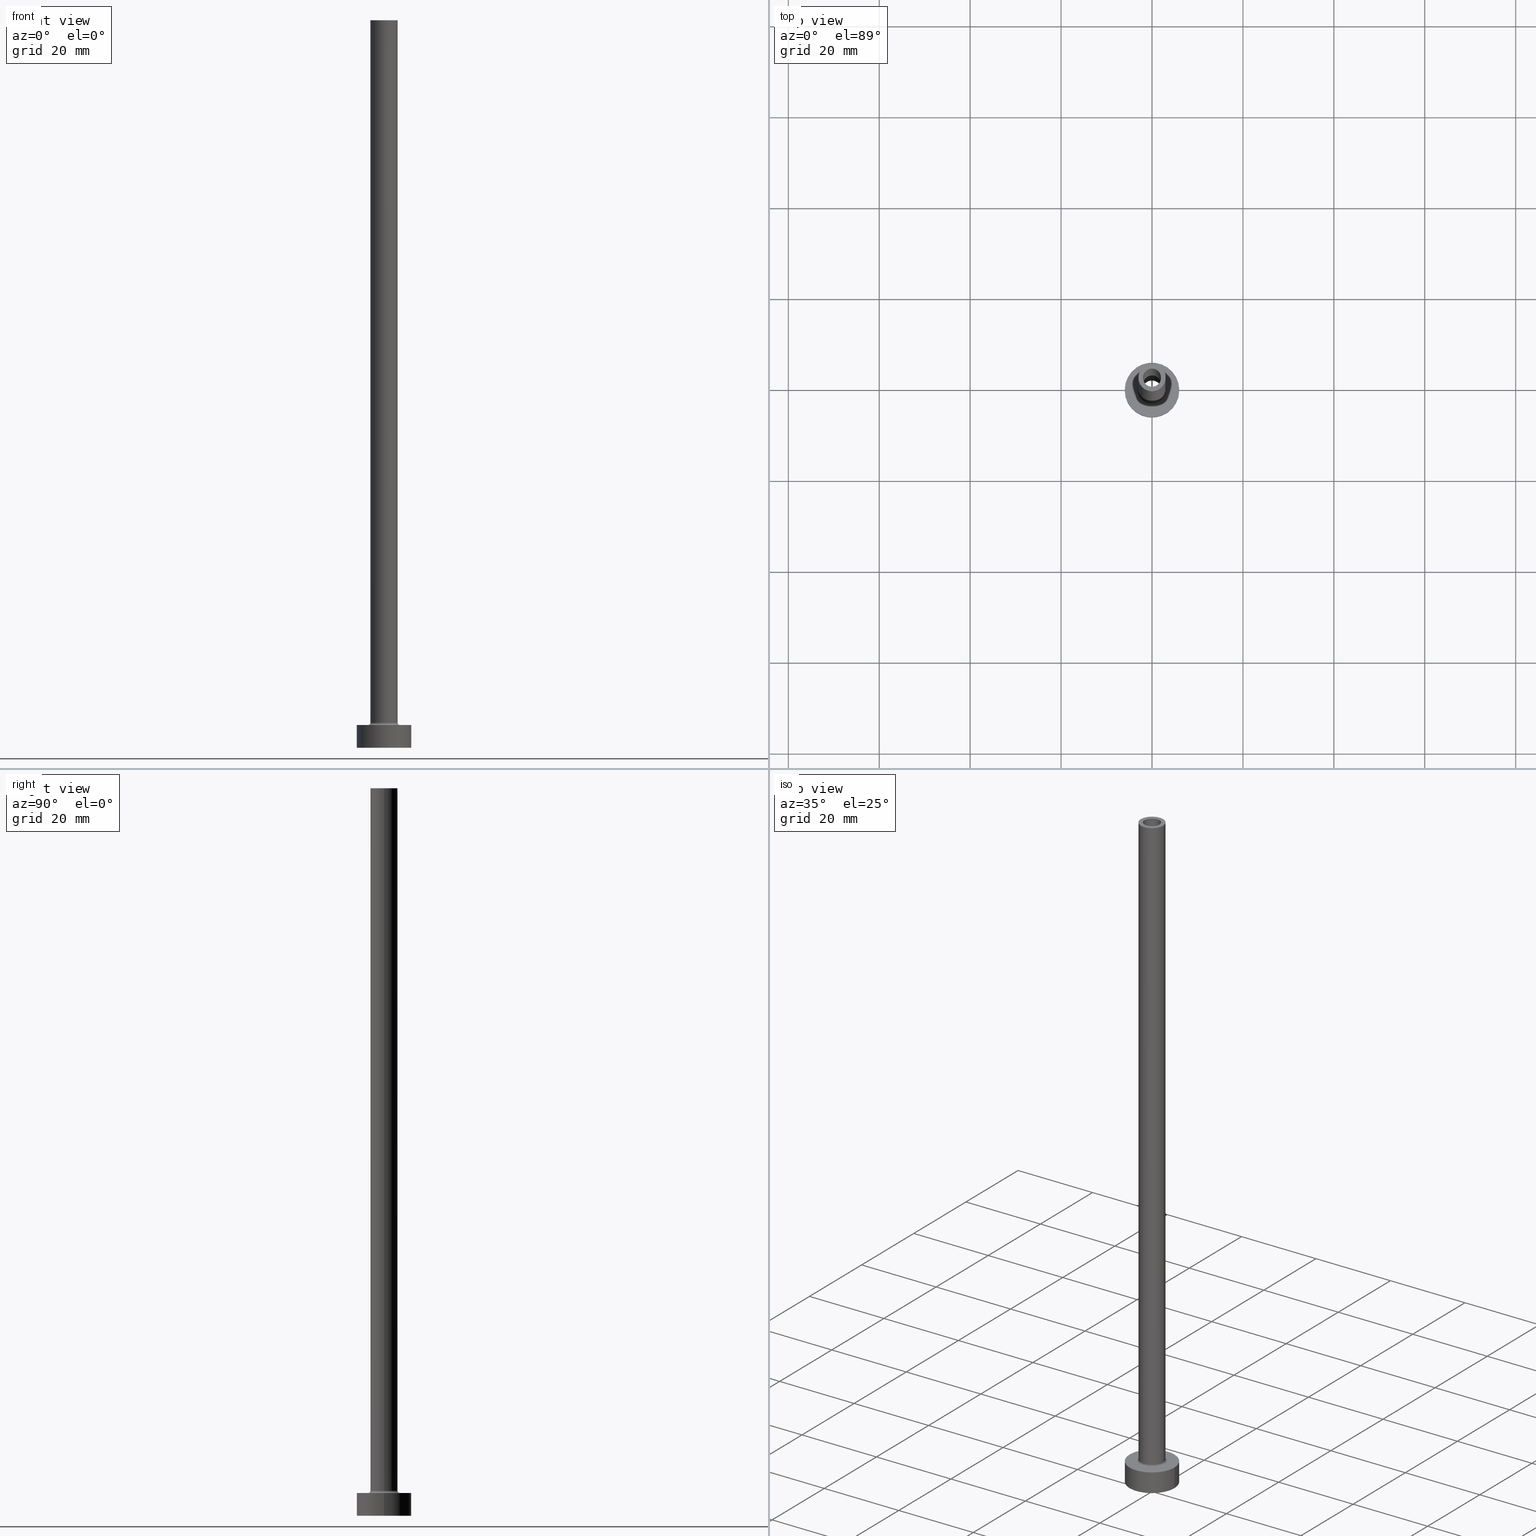
[diagram: canonical four-view strip — front | top / right | iso, engineering-drawing reading convention]
A machine part, canonical four-view strip (front | top / right | iso — engineering-drawing reading convention). The complete STEP part file that produces these views, byte-faithful:
ISO-10303-21;
HEADER;
FILE_DESCRIPTION (( 'STEP AP203' ),
    '1' );
FILE_NAME ('7dac.STEP',
    '2023-02-13T17:46:03',
    ( '' ),
    ( '' ),
    'SwSTEP 2.0',
    'SolidWorks 2019',
    '' );
FILE_SCHEMA (( 'CONFIG_CONTROL_DESIGN' ));
ENDSEC;

DATA;
#1 = DIRECTION ( 'NONE',  ( 0.000000000000000000, 0.000000000000000000, 1.000000000000000000 ) ) ;
#2 = VECTOR ( 'NONE', #407, 1000.000000000000000 ) ;
#3 = DIRECTION ( 'NONE',  ( -1.000000000000000000, 0.000000000000000000, 0.000000000000000000 ) ) ;
#4 = ADVANCED_FACE ( 'NONE', ( #92 ), #336, .F. ) ;
#5 = DIRECTION ( 'NONE',  ( 0.000000000000000000, 0.000000000000000000, -1.000000000000000000 ) ) ;
#6 = DIRECTION ( 'NONE',  ( 0.000000000000000000, 0.000000000000000000, 1.000000000000000000 ) ) ;
#7 = AXIS2_PLACEMENT_3D ( 'NONE', #432, #290, #252 ) ;
#8 = CARTESIAN_POINT ( 'NONE',  ( 0.000000000000000000, 0.000000000000000000, 160.0000000000000000 ) ) ;
#9 = EDGE_CURVE ( 'NONE', #208, #201, #327, .T. ) ;
#10 = APPLICATION_PROTOCOL_DEFINITION ( 'international standard', 'config_control_design', 1994, #184 ) ;
#11 = CARTESIAN_POINT ( 'NONE',  ( -3.000000000000000444, 0.000000000000000000, 160.0000000000000000 ) ) ;
#12 = DATE_AND_TIME ( #267, #288 ) ;
#13 = ADVANCED_FACE ( 'NONE', ( #334, #300 ), #442, .T. ) ;
#14 = CIRCLE ( 'NONE', #7, 3.000000000000000444 ) ;
#15 = DIRECTION ( 'NONE',  ( 0.000000000000000000, 0.000000000000000000, 1.000000000000000000 ) ) ;
#16 = ORIENTED_EDGE ( 'NONE', *, *, #78, .F. ) ;
#17 = ORIENTED_EDGE ( 'NONE', *, *, #31, .T. ) ;
#18 = APPROVAL_DATE_TIME ( #12, #450 ) ;
#19 = ORIENTED_EDGE ( 'NONE', *, *, #43, .T. ) ;
#20 = COORDINATED_UNIVERSAL_TIME_OFFSET ( 1, 0, .AHEAD. ) ;
#21 = ORIENTED_EDGE ( 'NONE', *, *, #239, .F. ) ;
#22 = PERSON_AND_ORGANIZATION ( #157, #350 ) ;
#23 = CIRCLE ( 'NONE', #376, 2.000000000000000000 ) ;
#24 = VERTEX_POINT ( 'NONE', #38 ) ;
#25 = LINE ( 'NONE', #175, #194 ) ;
#26 = VERTEX_POINT ( 'NONE', #253 ) ;
#27 = DIRECTION ( 'NONE',  ( -0.000000000000000000, -0.000000000000000000, -1.000000000000000000 ) ) ;
#28 = VERTEX_POINT ( 'NONE', #311 ) ;
#29 = CARTESIAN_POINT ( 'NONE',  ( 0.000000000000000000, 0.000000000000000000, 160.0000000000000000 ) ) ;
#30 = LINE ( 'NONE', #458, #240 ) ;
#31 = EDGE_CURVE ( 'NONE', #275, #448, #247, .T. ) ;
#32 = ORIENTED_EDGE ( 'NONE', *, *, #183, .T. ) ;
#33 = DIRECTION ( 'NONE',  ( 1.000000000000000000, 0.000000000000000000, 0.000000000000000000 ) ) ;
#34 = AXIS2_PLACEMENT_3D ( 'NONE', #83, #227, #298 ) ;
#35 = DIRECTION ( 'NONE',  ( 1.000000000000000000, 0.000000000000000000, 0.000000000000000000 ) ) ;
#36 = DIRECTION ( 'NONE',  ( 0.000000000000000000, 0.000000000000000000, 1.000000000000000000 ) ) ;
#37 = ORIENTED_EDGE ( 'NONE', *, *, #239, .T. ) ;
#38 = CARTESIAN_POINT ( 'NONE',  ( 2.149999999999999911, 2.632990618166809235E-16, 0.000000000000000000 ) ) ;
#39 = CIRCLE ( 'NONE', #358, 2.149999999999999911 ) ;
#40 = DIRECTION ( 'NONE',  ( 0.000000000000000000, 0.000000000000000000, 1.000000000000000000 ) ) ;
#41 = VERTEX_POINT ( 'NONE', #381 ) ;
#42 = CIRCLE ( 'NONE', #437, 3.000000000000000444 ) ;
#43 = EDGE_CURVE ( 'NONE', #343, #332, #262, .T. ) ;
#44 = CC_DESIGN_APPROVAL ( #254, ( #279 ) ) ;
#45 = APPROVAL_ROLE ( '' ) ;
#46 = DIRECTION ( 'NONE',  ( 1.000000000000000000, 0.000000000000000000, -0.000000000000000000 ) ) ;
#47 = FACE_OUTER_BOUND ( 'NONE', #156, .T. ) ;
#48 = CARTESIAN_POINT ( 'NONE',  ( 0.000000000000000000, 0.000000000000000000, 115.0000000000000000 ) ) ;
#49 = FACE_OUTER_BOUND ( 'NONE', #134, .T. ) ;
#50 = CIRCLE ( 'NONE', #414, 6.000000000000000888 ) ;
#51 = PERSON_AND_ORGANIZATION ( #157, #350 ) ;
#52 = ADVANCED_FACE ( 'NONE', ( #426 ), #421, .F. ) ;
#53 = APPROVAL_STATUS ( 'not_yet_approved' ) ;
#54 = EDGE_LOOP ( 'NONE', ( #315, #223, #274, #172 ) ) ;
#55 = DIRECTION ( 'NONE',  ( 1.000000000000000000, 0.000000000000000000, 0.000000000000000000 ) ) ;
#56 = EDGE_LOOP ( 'NONE', ( #346, #16, #246, #37 ) ) ;
#57 = DATE_TIME_ROLE ( 'creation_date' ) ;
#58 = VERTEX_POINT ( 'NONE', #119 ) ;
#59 = COORDINATED_UNIVERSAL_TIME_OFFSET ( 1, 0, .AHEAD. ) ;
#60 = CIRCLE ( 'NONE', #372, 2.149999999999999911 ) ;
#61 = FACE_OUTER_BOUND ( 'NONE', #306, .T. ) ;
#62 = EDGE_CURVE ( 'NONE', #277, #343, #147, .T. ) ;
#63 = ORIENTED_EDGE ( 'NONE', *, *, #190, .F. ) ;
#64 = AXIS2_PLACEMENT_3D ( 'NONE', #320, #419, #116 ) ;
#65 = CARTESIAN_POINT ( 'NONE',  ( 0.000000000000000000, 0.000000000000000000, 160.0000000000000000 ) ) ;
#66 = AXIS2_PLACEMENT_3D ( 'NONE', #221, #348, #35 ) ;
#67 = ORIENTED_EDGE ( 'NONE', *, *, #132, .F. ) ;
#68 = DIRECTION ( 'NONE',  ( 0.000000000000000000, 0.000000000000000000, 1.000000000000000000 ) ) ;
#69 = EDGE_LOOP ( 'NONE', ( #21, #101, #283, #140 ) ) ;
#70 = CARTESIAN_POINT ( 'NONE',  ( 3.000000000000000444, 3.673940397442060361E-16, 160.0000000000000000 ) ) ;
#71 = EDGE_CURVE ( 'NONE', #24, #58, #39, .T. ) ;
#72 = FACE_OUTER_BOUND ( 'NONE', #349, .T. ) ;
#73 = CARTESIAN_POINT ( 'NONE',  ( 0.000000000000000000, 0.000000000000000000, 0.000000000000000000 ) ) ;
#74 = CARTESIAN_POINT ( 'NONE',  ( 3.000000000000000444, 3.673940397442060361E-16, 160.0000000000000000 ) ) ;
#75 = DIRECTION ( 'NONE',  ( 1.000000000000000000, 0.000000000000000000, 0.000000000000000000 ) ) ;
#76 = DIRECTION ( 'NONE',  ( 1.000000000000000000, 0.000000000000000000, 0.000000000000000000 ) ) ;
#77 = ORIENTED_EDGE ( 'NONE', *, *, #190, .T. ) ;
#78 = EDGE_CURVE ( 'NONE', #26, #277, #79, .T. ) ;
#79 = CIRCLE ( 'NONE', #144, 3.000000000000000444 ) ;
#80 = PERSON_AND_ORGANIZATION ( #157, #350 ) ;
#81 = AXIS2_PLACEMENT_3D ( 'NONE', #155, #109, #179 ) ;
#82 = DIRECTION ( 'NONE',  ( -0.000000000000000000, -0.000000000000000000, -1.000000000000000000 ) ) ;
#83 = CARTESIAN_POINT ( 'NONE',  ( 0.000000000000000000, 0.000000000000000000, 5.000000000000000000 ) ) ;
#84 = CARTESIAN_POINT ( 'NONE',  ( 0.000000000000000000, 0.000000000000000000, 5.000000000000000000 ) ) ;
#85 = CARTESIAN_POINT ( 'NONE',  ( -2.000000000000000000, 0.000000000000000000, 160.0000000000000000 ) ) ;
#86 = AXIS2_PLACEMENT_3D ( 'NONE', #389, #149, #75 ) ;
#87 = CC_DESIGN_APPROVAL ( #450, ( #460 ) ) ;
#88 = APPROVAL_DATE_TIME ( #396, #254 ) ;
#89 = PLANE ( 'NONE',  #189 ) ;
#90 = PERSON_AND_ORGANIZATION_ROLE ( 'creator' ) ;
#91 = VERTEX_POINT ( 'NONE', #111 ) ;
#92 = FACE_OUTER_BOUND ( 'NONE', #167, .T. ) ;
#93 = EDGE_CURVE ( 'NONE', #58, #24, #60, .T. ) ;
#94 = ORIENTED_EDGE ( 'NONE', *, *, #338, .F. ) ;
#95 = VERTEX_POINT ( 'NONE', #316 ) ;
#96 = PRODUCT_DEFINITION_FORMATION_WITH_SPECIFIED_SOURCE ( 'LIBOVOLN�', '', #192, .NOT_KNOWN. ) ;
#97 = DIRECTION ( 'NONE',  ( 0.000000000000000000, 0.000000000000000000, 1.000000000000000000 ) ) ;
#98 = PERSON_AND_ORGANIZATION_ROLE ( 'creator' ) ;
#99 = ADVANCED_FACE ( 'NONE', ( #459 ), #114, .T. ) ;
#100 = LINE ( 'NONE', #11, #341 ) ;
#101 = ORIENTED_EDGE ( 'NONE', *, *, #174, .T. ) ;
#102 = DIRECTION ( 'NONE',  ( 1.000000000000000000, 0.000000000000000000, 0.000000000000000000 ) ) ;
#103 = EDGE_LOOP ( 'NONE', ( #17, #216 ) ) ;
#104 = VECTOR ( 'NONE', #217, 1000.000000000000000 ) ;
#105 = APPLICATION_CONTEXT ( 'configuration controlled 3d designs of mechanical parts and assemblies' ) ;
#106 = CARTESIAN_POINT ( 'NONE',  ( -6.000000000000000888, 0.000000000000000000, 5.000000000000000000 ) ) ;
#107 = AXIS2_PLACEMENT_3D ( 'NONE', #145, #36, #243 ) ;
#108 = ADVANCED_FACE ( 'NONE', ( #264, #130 ), #89, .T. ) ;
#109 = DIRECTION ( 'NONE',  ( 0.000000000000000000, 0.000000000000000000, -1.000000000000000000 ) ) ;
#110 = ORIENTED_EDGE ( 'NONE', *, *, #379, .F. ) ;
#111 = CARTESIAN_POINT ( 'NONE',  ( -6.000000000000000888, 0.000000000000000000, 0.000000000000000000 ) ) ;
#112 = DIRECTION ( 'NONE',  ( 1.224646799147353207E-16, 1.000000000000000000, -0.000000000000000000 ) ) ;
#113 = ORIENTED_EDGE ( 'NONE', *, *, #203, .T. ) ;
#114 = CYLINDRICAL_SURFACE ( 'NONE', #257, 6.000000000000000888 ) ;
#115 = FACE_OUTER_BOUND ( 'NONE', #133, .T. ) ;
#116 = DIRECTION ( 'NONE',  ( 1.000000000000000000, 0.000000000000000000, 0.000000000000000000 ) ) ;
#117 = CIRCLE ( 'NONE', #299, 2.000000000000000000 ) ;
#118 = ADVANCED_FACE ( 'NONE', ( #49 ), #433, .T. ) ;
#119 = CARTESIAN_POINT ( 'NONE',  ( -2.149999999999999911, 0.000000000000000000, 0.000000000000000000 ) ) ;
#120 = DIRECTION ( 'NONE',  ( 0.000000000000000000, 0.000000000000000000, -1.000000000000000000 ) ) ;
#121 = DIRECTION ( 'NONE',  ( 0.000000000000000000, 0.000000000000000000, 1.000000000000000000 ) ) ;
#122 = AXIS2_PLACEMENT_3D ( 'NONE', #394, #82, #225 ) ;
#123 = EDGE_CURVE ( 'NONE', #41, #24, #436, .T. ) ;
#124 = MANIFOLD_SOLID_BREP ( 'Odebrat vysunut�m4', #153 ) ;
#125 = DIRECTION ( 'NONE',  ( 0.000000000000000000, 0.000000000000000000, 1.000000000000000000 ) ) ;
#126 = PRODUCT_DEFINITION_SHAPE ( 'NONE', 'NONE',  #460 ) ;
#127 = CARTESIAN_POINT ( 'NONE',  ( 3.000000000000000444, 3.673940397442060361E-16, 5.500000000000005329 ) ) ;
#128 = COORDINATED_UNIVERSAL_TIME_OFFSET ( 1, 0, .AHEAD. ) ;
#129 = AXIS2_PLACEMENT_3D ( 'NONE', #365, #135, #269 ) ;
#130 = FACE_OUTER_BOUND ( 'NONE', #204, .T. ) ;
#131 = AXIS2_PLACEMENT_3D ( 'NONE', #276, #417, #76 ) ;
#132 = EDGE_CURVE ( 'NONE', #408, #95, #23, .T. ) ;
#133 = EDGE_LOOP ( 'NONE', ( #94, #238 ) ) ;
#134 = EDGE_LOOP ( 'NONE', ( #250, #205, #113, #235 ) ) ;
#135 = DIRECTION ( 'NONE',  ( 0.000000000000000000, 0.000000000000000000, -1.000000000000000000 ) ) ;
#136 = ORIENTED_EDGE ( 'NONE', *, *, #78, .T. ) ;
#137 = EDGE_CURVE ( 'NONE', #448, #271, #234, .T. ) ;
#138 = AXIS2_PLACEMENT_3D ( 'NONE', #241, #422, #237 ) ;
#139 = PERSON_AND_ORGANIZATION_ROLE ( 'classification_officer' ) ;
#140 = ORIENTED_EDGE ( 'NONE', *, *, #260, .F. ) ;
#141 = DESIGN_CONTEXT ( 'detailed design', #105, 'design' ) ;
#142 = ORIENTED_EDGE ( 'NONE', *, *, #203, .F. ) ;
#143 = CYLINDRICAL_SURFACE ( 'NONE', #138, 3.000000000000000444 ) ;
#144 = AXIS2_PLACEMENT_3D ( 'NONE', #29, #152, #177 ) ;
#145 = CARTESIAN_POINT ( 'NONE',  ( 0.000000000000000000, 0.000000000000000000, 0.000000000000000000 ) ) ;
#146 = AXIS2_PLACEMENT_3D ( 'NONE', #193, #325, #3 ) ;
#147 = LINE ( 'NONE', #70, #104 ) ;
#148 = PLANE ( 'NONE',  #359 ) ;
#149 = DIRECTION ( 'NONE',  ( 0.000000000000000000, 0.000000000000000000, 1.000000000000000000 ) ) ;
#150 = CARTESIAN_POINT ( 'NONE',  ( -3.500000000000000444, 4.286263797015737088E-16, 5.500000000000005329 ) ) ;
#151 = ORIENTED_EDGE ( 'NONE', *, *, #244, .F. ) ;
#152 = DIRECTION ( 'NONE',  ( 0.000000000000000000, 0.000000000000000000, 1.000000000000000000 ) ) ;
#153 = CLOSED_SHELL ( 'NONE', ( #220, #4, #52, #295, #99, #118, #13, #310, #344, #108, #196, #393, #326, #159 ) ) ;
#154 = EDGE_CURVE ( 'NONE', #26, #332, #100, .T. ) ;
#155 = CARTESIAN_POINT ( 'NONE',  ( 0.000000000000000000, 0.000000000000000000, 160.0000000000000000 ) ) ;
#156 = EDGE_LOOP ( 'NONE', ( #285, #367, #77, #375 ) ) ;
#157 = PERSON ( 'NEUR�EN�', 'NEUR�EN�', 'NEUR�EN�', ('NEUR�EN�'), ('NEUR�EN�'), ('NEUR�EN�') ) ;
#158 = PERSON_AND_ORGANIZATION_ROLE ( 'design_owner' ) ;
#159 = ADVANCED_FACE ( 'NONE', ( #61 ), #207, .F. ) ;
#160 = CARTESIAN_POINT ( 'NONE',  ( -2.000000000000000000, 0.000000000000000000, 115.0000000000000000 ) ) ;
#161 = DIRECTION ( 'NONE',  ( 0.000000000000000000, 0.000000000000000000, 1.000000000000000000 ) ) ;
#162 = EDGE_CURVE ( 'NONE', #41, #28, #447, .T. ) ;
#163 = DATE_AND_TIME ( #270, #170 ) ;
#164 = DIRECTION ( 'NONE',  ( 1.000000000000000000, 0.000000000000000000, 0.000000000000000000 ) ) ;
#165 = DIRECTION ( 'NONE',  ( -0.000000000000000000, -0.000000000000000000, -1.000000000000000000 ) ) ;
#166 = CC_DESIGN_PERSON_AND_ORGANIZATION_ASSIGNMENT ( #392, #158, ( #192 ) ) ;
#167 = EDGE_LOOP ( 'NONE', ( #32, #211, #374, #63 ) ) ;
#168 = CIRCLE ( 'NONE', #456, 6.000000000000000888 ) ;
#169 = APPROVAL_STATUS ( 'not_yet_approved' ) ;
#170 = LOCAL_TIME ( 18, 46, 3.000000000000000000, #20 ) ;
#171 = DIRECTION ( 'NONE',  ( 1.000000000000000000, 0.000000000000000000, -0.000000000000000000 ) ) ;
#172 = ORIENTED_EDGE ( 'NONE', *, *, #9, .F. ) ;
#173 = DIRECTION ( 'NONE',  ( 1.000000000000000000, 0.000000000000000000, 0.000000000000000000 ) ) ;
#174 = EDGE_CURVE ( 'NONE', #332, #208, #218, .T. ) ;
#175 = CARTESIAN_POINT ( 'NONE',  ( -6.000000000000000888, 0.000000000000000000, 5.000000000000000000 ) ) ;
#176 = ORIENTED_EDGE ( 'NONE', *, *, #9, .T. ) ;
#177 = DIRECTION ( 'NONE',  ( 1.000000000000000000, 0.000000000000000000, 0.000000000000000000 ) ) ;
#178 = AXIS2_PLACEMENT_3D ( 'NONE', #395, #125, #390 ) ;
#179 = DIRECTION ( 'NONE',  ( -1.000000000000000000, 0.000000000000000000, 0.000000000000000000 ) ) ;
#180 = ORIENTED_EDGE ( 'NONE', *, *, #244, .T. ) ;
#181 = DIRECTION ( 'NONE',  ( 0.000000000000000000, 0.000000000000000000, -1.000000000000000000 ) ) ;
#182 = CARTESIAN_POINT ( 'NONE',  ( 0.000000000000000000, 0.000000000000000000, 5.000000000000000000 ) ) ;
#183 = EDGE_CURVE ( 'NONE', #28, #41, #322, .T. ) ;
#184 = APPLICATION_CONTEXT ( 'configuration controlled 3d designs of mechanical parts and assemblies' ) ;
#185 = CARTESIAN_POINT ( 'NONE',  ( 0.000000000000000000, 0.000000000000000000, 0.000000000000000000 ) ) ;
#186 = ORIENTED_EDGE ( 'NONE', *, *, #428, .T. ) ;
#187 = DIRECTION ( 'NONE',  ( 1.000000000000000000, 0.000000000000000000, 0.000000000000000000 ) ) ;
#188 = ORIENTED_EDGE ( 'NONE', *, *, #368, .F. ) ;
#189 = AXIS2_PLACEMENT_3D ( 'NONE', #8, #161, #46 ) ;
#190 = EDGE_CURVE ( 'NONE', #28, #58, #282, .T. ) ;
#191 =( NAMED_UNIT ( * ) PLANE_ANGLE_UNIT ( ) SI_UNIT ( $, .RADIAN. ) );
#192 = PRODUCT ( '7dac', '7dac', '', ( #323 ) ) ;
#193 = CARTESIAN_POINT ( 'NONE',  ( 0.000000000000000000, 0.000000000000000000, 121.0811183182043322 ) ) ;
#194 = VECTOR ( 'NONE', #27, 1000.000000000000000 ) ;
#195 = CYLINDRICAL_SURFACE ( 'NONE', #122, 3.000000000000000444 ) ;
#196 = ADVANCED_FACE ( 'NONE', ( #352 ), #312, .F. ) ;
#197 = DIRECTION ( 'NONE',  ( 0.000000000000000000, 0.000000000000000000, -1.000000000000000000 ) ) ;
#198 = APPROVAL_ROLE ( '' ) ;
#199 = DIRECTION ( 'NONE',  ( -1.000000000000000000, 0.000000000000000000, 0.000000000000000000 ) ) ;
#200 = ORIENTED_EDGE ( 'NONE', *, *, #420, .T. ) ;
#201 = VERTEX_POINT ( 'NONE', #415 ) ;
#202 = VECTOR ( 'NONE', #5, 1000.000000000000000 ) ;
#203 = EDGE_CURVE ( 'NONE', #275, #91, #25, .T. ) ;
#204 = EDGE_LOOP ( 'NONE', ( #136, #242 ) ) ;
#205 = ORIENTED_EDGE ( 'NONE', *, *, #31, .F. ) ;
#206 = DATE_AND_TIME ( #371, #386 ) ;
#207 = CYLINDRICAL_SURFACE ( 'NONE', #265, 2.000000000000000000 ) ;
#208 = VERTEX_POINT ( 'NONE', #212 ) ;
#209 = CIRCLE ( 'NONE', #178, 2.000000000000000000 ) ;
#210 = DIRECTION ( 'NONE',  ( 0.000000000000000000, 0.000000000000000000, 1.000000000000000000 ) ) ;
#211 = ORIENTED_EDGE ( 'NONE', *, *, #123, .T. ) ;
#212 = CARTESIAN_POINT ( 'NONE',  ( -3.500000000000000444, 4.286263797015737088E-16, 5.000000000000002665 ) ) ;
#213 = EDGE_LOOP ( 'NONE', ( #418, #176 ) ) ;
#214 = CARTESIAN_POINT ( 'NONE',  ( 0.000000000000000000, 0.000000000000000000, 0.000000000000000000 ) ) ;
#215 = DIRECTION ( 'NONE',  ( -1.000000000000000000, 1.224646799147354440E-16, 0.000000000000000000 ) ) ;
#216 = ORIENTED_EDGE ( 'NONE', *, *, #441, .T. ) ;
#217 = DIRECTION ( 'NONE',  ( -0.000000000000000000, -0.000000000000000000, -1.000000000000000000 ) ) ;
#218 = CIRCLE ( 'NONE', #385, 0.4999999999999995559 ) ;
#219 = FACE_OUTER_BOUND ( 'NONE', #303, .T. ) ;
#220 = ADVANCED_FACE ( 'NONE', ( #411 ), #284, .F. ) ;
#221 = CARTESIAN_POINT ( 'NONE',  ( 0.000000000000000000, 0.000000000000000000, 5.500000000000005329 ) ) ;
#222 = CARTESIAN_POINT ( 'NONE',  ( 0.000000000000000000, 0.000000000000000000, 0.000000000000000000 ) ) ;
#223 = ORIENTED_EDGE ( 'NONE', *, *, #43, .F. ) ;
#224 = PRODUCT_RELATED_PRODUCT_CATEGORY ( 'detail', '', ( #192 ) ) ;
#225 = DIRECTION ( 'NONE',  ( -1.000000000000000000, 0.000000000000000000, 0.000000000000000000 ) ) ;
#226 = DIRECTION ( 'NONE',  ( -1.000000000000000000, 0.000000000000000000, 0.000000000000000000 ) ) ;
#227 = DIRECTION ( 'NONE',  ( -0.000000000000000000, -0.000000000000000000, -1.000000000000000000 ) ) ;
#228 = SHAPE_DEFINITION_REPRESENTATION ( #126, #309 ) ;
#229 = DATE_AND_TIME ( #406, #377 ) ;
#230 = CARTESIAN_POINT ( 'NONE',  ( 0.000000000000000000, 0.000000000000000000, 5.000000000000000000 ) ) ;
#231 = EDGE_CURVE ( 'NONE', #201, #208, #397, .T. ) ;
#232 = PERSON_AND_ORGANIZATION ( #157, #350 ) ;
#233 = ORIENTED_EDGE ( 'NONE', *, *, #71, .F. ) ;
#234 = LINE ( 'NONE', #445, #2 ) ;
#235 = ORIENTED_EDGE ( 'NONE', *, *, #338, .T. ) ;
#236 = COORDINATED_UNIVERSAL_TIME_OFFSET ( 1, 0, .AHEAD. ) ;
#237 = DIRECTION ( 'NONE',  ( -1.000000000000000000, 0.000000000000000000, 0.000000000000000000 ) ) ;
#238 = ORIENTED_EDGE ( 'NONE', *, *, #428, .F. ) ;
#239 = EDGE_CURVE ( 'NONE', #332, #343, #42, .T. ) ;
#240 = VECTOR ( 'NONE', #181, 1000.000000000000000 ) ;
#241 = CARTESIAN_POINT ( 'NONE',  ( 0.000000000000000000, 0.000000000000000000, 160.0000000000000000 ) ) ;
#242 = ORIENTED_EDGE ( 'NONE', *, *, #379, .T. ) ;
#243 = DIRECTION ( 'NONE',  ( 1.000000000000000000, 0.000000000000000000, -0.000000000000000000 ) ) ;
#244 = EDGE_CURVE ( 'NONE', #340, #95, #30, .T. ) ;
#245 = DIRECTION ( 'NONE',  ( -0.000000000000000000, -0.000000000000000000, -1.000000000000000000 ) ) ;
#246 = ORIENTED_EDGE ( 'NONE', *, *, #154, .T. ) ;
#247 = CIRCLE ( 'NONE', #382, 6.000000000000000888 ) ;
#248 = CIRCLE ( 'NONE', #278, 0.5000000000000004441 ) ;
#249 = DIRECTION ( 'NONE',  ( 0.000000000000000000, 0.000000000000000000, 1.000000000000000000 ) ) ;
#250 = ORIENTED_EDGE ( 'NONE', *, *, #137, .F. ) ;
#251 = DIRECTION ( 'NONE',  ( 0.000000000000000000, 0.000000000000000000, 1.000000000000000000 ) ) ;
#252 = DIRECTION ( 'NONE',  ( 1.000000000000000000, 0.000000000000000000, 0.000000000000000000 ) ) ;
#253 = CARTESIAN_POINT ( 'NONE',  ( -3.000000000000000444, 0.000000000000000000, 160.0000000000000000 ) ) ;
#254 = APPROVAL ( #169, 'NEUR�EN�' ) ;
#255 =( LENGTH_UNIT ( ) NAMED_UNIT ( * ) SI_UNIT ( .MILLI., .METRE. ) );
#256 = CIRCLE ( 'NONE', #430, 6.000000000000000888 ) ;
#257 = AXIS2_PLACEMENT_3D ( 'NONE', #182, #318, #226 ) ;
#258 = APPROVAL_PERSON_ORGANIZATION ( #22, #254, #435 ) ;
#259 = CARTESIAN_POINT ( 'NONE',  ( 6.000000000000000888, 7.347880794884120722E-16, 5.000000000000000000 ) ) ;
#260 = EDGE_CURVE ( 'NONE', #343, #201, #248, .T. ) ;
#261 = CARTESIAN_POINT ( 'NONE',  ( 0.000000000000000000, 0.000000000000000000, 160.0000000000000000 ) ) ;
#262 = CIRCLE ( 'NONE', #64, 3.000000000000000444 ) ;
#263 = CALENDAR_DATE ( 2023, 13, 2 ) ;
#264 = FACE_BOUND ( 'NONE', #268, .T. ) ;
#265 = AXIS2_PLACEMENT_3D ( 'NONE', #449, #197, #199 ) ;
#266 = CC_DESIGN_SECURITY_CLASSIFICATION ( #279, ( #96 ) ) ;
#267 = CALENDAR_DATE ( 2023, 13, 2 ) ;
#268 = EDGE_LOOP ( 'NONE', ( #423, #188 ) ) ;
#269 = DIRECTION ( 'NONE',  ( -1.000000000000000000, 0.000000000000000000, 0.000000000000000000 ) ) ;
#270 = CALENDAR_DATE ( 2023, 13, 2 ) ;
#271 = VERTEX_POINT ( 'NONE', #289 ) ;
#272 =( GEOMETRIC_REPRESENTATION_CONTEXT ( 3 ) GLOBAL_UNCERTAINTY_ASSIGNED_CONTEXT ( ( #409 ) ) GLOBAL_UNIT_ASSIGNED_CONTEXT ( ( #255, #191, #328 ) ) REPRESENTATION_CONTEXT ( 'NONE', 'WORKASPACE' ) );
#273 = COORDINATED_UNIVERSAL_TIME_OFFSET ( 1, 0, .AHEAD. ) ;
#274 = ORIENTED_EDGE ( 'NONE', *, *, #260, .T. ) ;
#275 = VERTEX_POINT ( 'NONE', #106 ) ;
#276 = CARTESIAN_POINT ( 'NONE',  ( 0.000000000000000000, 0.000000000000000000, 115.0000000000000000 ) ) ;
#277 = VERTEX_POINT ( 'NONE', #74 ) ;
#278 = AXIS2_PLACEMENT_3D ( 'NONE', #378, #317, #461 ) ;
#279 = SECURITY_CLASSIFICATION ( '', '', #302 ) ;
#280 = DIRECTION ( 'NONE',  ( 1.000000000000000000, 0.000000000000000000, 0.000000000000000000 ) ) ;
#281 = ORIENTED_EDGE ( 'NONE', *, *, #321, .T. ) ;
#282 = LINE ( 'NONE', #425, #457 ) ;
#283 = ORIENTED_EDGE ( 'NONE', *, *, #231, .F. ) ;
#284 = CYLINDRICAL_SURFACE ( 'NONE', #81, 2.000000000000000000 ) ;
#285 = ORIENTED_EDGE ( 'NONE', *, *, #123, .F. ) ;
#286 = DIRECTION ( 'NONE',  ( -0.000000000000000000, -0.000000000000000000, -1.000000000000000000 ) ) ;
#287 = AXIS2_PLACEMENT_3D ( 'NONE', #230, #165, #55 ) ;
#288 = LOCAL_TIME ( 18, 46, 3.000000000000000000, #273 ) ;
#289 = CARTESIAN_POINT ( 'NONE',  ( 6.000000000000000888, 7.347880794884120722E-16, 0.000000000000000000 ) ) ;
#290 = DIRECTION ( 'NONE',  ( 0.000000000000000000, 0.000000000000000000, 1.000000000000000000 ) ) ;
#291 = CC_DESIGN_PERSON_AND_ORGANIZATION_ASSIGNMENT ( #403, #401, ( #96 ) ) ;
#292 = DIRECTION ( 'NONE',  ( 0.000000000000000000, 0.000000000000000000, 1.000000000000000000 ) ) ;
#293 = CARTESIAN_POINT ( 'NONE',  ( -2.000000000000000000, 0.000000000000000000, 160.0000000000000000 ) ) ;
#294 = APPROVAL_PERSON_ORGANIZATION ( #51, #434, #198 ) ;
#295 = ADVANCED_FACE ( 'NONE', ( #219 ), #143, .T. ) ;
#296 = FACE_OUTER_BOUND ( 'NONE', #56, .T. ) ;
#297 = DIRECTION ( 'NONE',  ( 1.000000000000000000, 0.000000000000000000, 0.000000000000000000 ) ) ;
#298 = DIRECTION ( 'NONE',  ( -1.000000000000000000, 0.000000000000000000, 0.000000000000000000 ) ) ;
#299 = AXIS2_PLACEMENT_3D ( 'NONE', #65, #210, #280 ) ;
#300 = FACE_OUTER_BOUND ( 'NONE', #103, .T. ) ;
#301 = ORIENTED_EDGE ( 'NONE', *, *, #420, .F. ) ;
#302 = SECURITY_CLASSIFICATION_LEVEL ( 'unclassified' ) ;
#303 = EDGE_LOOP ( 'NONE', ( #110, #369, #19, #357 ) ) ;
#304 = CIRCLE ( 'NONE', #363, 2.000000000000000000 ) ;
#305 = CC_DESIGN_DATE_AND_TIME_ASSIGNMENT ( #229, #57, ( #460 ) ) ;
#306 = EDGE_LOOP ( 'NONE', ( #151, #370, #200, #384 ) ) ;
#307 = DIRECTION ( 'NONE',  ( 1.000000000000000000, 0.000000000000000000, 0.000000000000000000 ) ) ;
#308 = DIRECTION ( 'NONE',  ( 1.000000000000000000, 0.000000000000000000, -0.000000000000000000 ) ) ;
#309 = ADVANCED_BREP_SHAPE_REPRESENTATION ( '7dac', ( #124, #404 ), #272 ) ;
#310 = ADVANCED_FACE ( 'NONE', ( #345, #115 ), #454, .F. ) ;
#311 = CARTESIAN_POINT ( 'NONE',  ( -2.149999999999999911, 0.000000000000000000, 115.0000000000000000 ) ) ;
#312 = TOROIDAL_SURFACE ( 'NONE', #66, 3.500000000000000444, 0.5000000000000000000 ) ;
#313 = LOCAL_TIME ( 18, 46, 3.000000000000000000, #128 ) ;
#314 = CARTESIAN_POINT ( 'NONE',  ( 0.000000000000000000, 0.000000000000000000, 5.500000000000005329 ) ) ;
#315 = ORIENTED_EDGE ( 'NONE', *, *, #174, .F. ) ;
#316 = CARTESIAN_POINT ( 'NONE',  ( 2.000000000000000000, 2.449293598294705921E-16, 115.0000000000000000 ) ) ;
#317 = DIRECTION ( 'NONE',  ( 0.000000000000000000, -1.000000000000000000, 0.000000000000000000 ) ) ;
#318 = DIRECTION ( 'NONE',  ( -0.000000000000000000, -0.000000000000000000, -1.000000000000000000 ) ) ;
#319 = CARTESIAN_POINT ( 'NONE',  ( 0.000000000000000000, 0.000000000000000000, 115.0000000000000000 ) ) ;
#320 = CARTESIAN_POINT ( 'NONE',  ( 0.000000000000000000, 0.000000000000000000, 5.500000000000005329 ) ) ;
#321 = EDGE_CURVE ( 'NONE', #405, #340, #117, .T. ) ;
#322 = CIRCLE ( 'NONE', #131, 2.149999999999999911 ) ;
#323 = MECHANICAL_CONTEXT ( 'NONE', #184, 'mechanical' ) ;
#324 = CARTESIAN_POINT ( 'NONE',  ( 2.149999999999999911, 2.632990618166809235E-16, 121.0811183182043322 ) ) ;
#325 = DIRECTION ( 'NONE',  ( 0.000000000000000000, 0.000000000000000000, -1.000000000000000000 ) ) ;
#326 = ADVANCED_FACE ( 'NONE', ( #380, #72 ), #148, .F. ) ;
#327 = CIRCLE ( 'NONE', #287, 3.500000000000000444 ) ;
#328 =( NAMED_UNIT ( * ) SI_UNIT ( $, .STERADIAN. ) SOLID_ANGLE_UNIT ( ) );
#329 = AXIS2_PLACEMENT_3D ( 'NONE', #331, #15, #164 ) ;
#330 = CC_DESIGN_DATE_AND_TIME_ASSIGNMENT ( #206, #339, ( #279 ) ) ;
#331 = CARTESIAN_POINT ( 'NONE',  ( 0.000000000000000000, 0.000000000000000000, 115.0000000000000000 ) ) ;
#332 = VERTEX_POINT ( 'NONE', #387 ) ;
#333 = VECTOR ( 'NONE', #120, 1000.000000000000000 ) ;
#334 = FACE_BOUND ( 'NONE', #213, .T. ) ;
#335 = EDGE_LOOP ( 'NONE', ( #400, #452 ) ) ;
#336 = CYLINDRICAL_SURFACE ( 'NONE', #129, 2.149999999999999911 ) ;
#337 = EDGE_LOOP ( 'NONE', ( #354, #233 ) ) ;
#338 = EDGE_CURVE ( 'NONE', #91, #271, #50, .T. ) ;
#339 = DATE_TIME_ROLE ( 'classification_date' ) ;
#340 = VERTEX_POINT ( 'NONE', #451 ) ;
#341 = VECTOR ( 'NONE', #440, 1000.000000000000000 ) ;
#342 = DIRECTION ( 'NONE',  ( 0.000000000000000000, 0.000000000000000000, -1.000000000000000000 ) ) ;
#343 = VERTEX_POINT ( 'NONE', #127 ) ;
#344 = ADVANCED_FACE ( 'NONE', ( #296 ), #195, .T. ) ;
#345 = FACE_BOUND ( 'NONE', #337, .T. ) ;
#346 = ORIENTED_EDGE ( 'NONE', *, *, #62, .F. ) ;
#347 = DIRECTION ( 'NONE',  ( 1.000000000000000000, 0.000000000000000000, 0.000000000000000000 ) ) ;
#348 = DIRECTION ( 'NONE',  ( 0.000000000000000000, 0.000000000000000000, 1.000000000000000000 ) ) ;
#349 = EDGE_LOOP ( 'NONE', ( #412, #438 ) ) ;
#350 = ORGANIZATION ( 'NEUR�EN�', 'NEUR�EN�', '' ) ;
#351 = CC_DESIGN_APPROVAL ( #434, ( #96 ) ) ;
#352 = FACE_OUTER_BOUND ( 'NONE', #54, .T. ) ;
#353 = CARTESIAN_POINT ( 'NONE',  ( 0.000000000000000000, 0.000000000000000000, 5.000000000000000000 ) ) ;
#354 = ORIENTED_EDGE ( 'NONE', *, *, #93, .F. ) ;
#355 = CC_DESIGN_PERSON_AND_ORGANIZATION_ASSIGNMENT ( #232, #98, ( #96 ) ) ;
#356 = CARTESIAN_POINT ( 'NONE',  ( 0.000000000000000000, 0.000000000000000000, 0.000000000000000000 ) ) ;
#357 = ORIENTED_EDGE ( 'NONE', *, *, #154, .F. ) ;
#358 = AXIS2_PLACEMENT_3D ( 'NONE', #214, #416, #347 ) ;
#359 = AXIS2_PLACEMENT_3D ( 'NONE', #319, #249, #171 ) ;
#360 = APPROVAL_STATUS ( 'not_yet_approved' ) ;
#361 = LINE ( 'NONE', #293, #333 ) ;
#362 = DIRECTION ( 'NONE',  ( 1.000000000000000000, 0.000000000000000000, 0.000000000000000000 ) ) ;
#363 = AXIS2_PLACEMENT_3D ( 'NONE', #261, #292, #297 ) ;
#364 = EDGE_LOOP ( 'NONE', ( #410, #446, #186, #142 ) ) ;
#365 = CARTESIAN_POINT ( 'NONE',  ( 0.000000000000000000, 0.000000000000000000, 121.0811183182043322 ) ) ;
#366 = AXIS2_PLACEMENT_3D ( 'NONE', #353, #245, #373 ) ;
#367 = ORIENTED_EDGE ( 'NONE', *, *, #162, .T. ) ;
#368 = EDGE_CURVE ( 'NONE', #340, #405, #304, .T. ) ;
#369 = ORIENTED_EDGE ( 'NONE', *, *, #62, .T. ) ;
#370 = ORIENTED_EDGE ( 'NONE', *, *, #368, .T. ) ;
#371 = CALENDAR_DATE ( 2023, 13, 2 ) ;
#372 = AXIS2_PLACEMENT_3D ( 'NONE', #73, #286, #33 ) ;
#373 = DIRECTION ( 'NONE',  ( 1.000000000000000000, 0.000000000000000000, 0.000000000000000000 ) ) ;
#374 = ORIENTED_EDGE ( 'NONE', *, *, #71, .T. ) ;
#375 = ORIENTED_EDGE ( 'NONE', *, *, #93, .T. ) ;
#376 = AXIS2_PLACEMENT_3D ( 'NONE', #48, #97, #102 ) ;
#377 = LOCAL_TIME ( 18, 46, 3.000000000000000000, #59 ) ;
#378 = CARTESIAN_POINT ( 'NONE',  ( 3.500000000000000444, 0.000000000000000000, 5.500000000000005329 ) ) ;
#379 = EDGE_CURVE ( 'NONE', #277, #26, #14, .T. ) ;
#380 = FACE_BOUND ( 'NONE', #335, .T. ) ;
#381 = CARTESIAN_POINT ( 'NONE',  ( 2.149999999999999911, 2.632990618166809235E-16, 115.0000000000000000 ) ) ;
#382 = AXIS2_PLACEMENT_3D ( 'NONE', #455, #251, #173 ) ;
#383 = DIRECTION ( 'NONE',  ( 1.000000000000000000, 0.000000000000000000, 0.000000000000000000 ) ) ;
#384 = ORIENTED_EDGE ( 'NONE', *, *, #398, .F. ) ;
#385 = AXIS2_PLACEMENT_3D ( 'NONE', #150, #112, #215 ) ;
#386 = LOCAL_TIME ( 18, 46, 3.000000000000000000, #236 ) ;
#387 = CARTESIAN_POINT ( 'NONE',  ( -3.000000000000000444, 0.000000000000000000, 5.500000000000005329 ) ) ;
#388 = CC_DESIGN_PERSON_AND_ORGANIZATION_ASSIGNMENT ( #399, #90, ( #460 ) ) ;
#389 = CARTESIAN_POINT ( 'NONE',  ( 0.000000000000000000, 0.000000000000000000, 5.500000000000005329 ) ) ;
#390 = DIRECTION ( 'NONE',  ( 1.000000000000000000, 0.000000000000000000, 0.000000000000000000 ) ) ;
#391 = DIRECTION ( 'NONE',  ( 0.000000000000000000, 0.000000000000000000, 1.000000000000000000 ) ) ;
#392 = PERSON_AND_ORGANIZATION ( #157, #350 ) ;
#393 = ADVANCED_FACE ( 'NONE', ( #47 ), #429, .F. ) ;
#394 = CARTESIAN_POINT ( 'NONE',  ( 0.000000000000000000, 0.000000000000000000, 160.0000000000000000 ) ) ;
#395 = CARTESIAN_POINT ( 'NONE',  ( 0.000000000000000000, 0.000000000000000000, 115.0000000000000000 ) ) ;
#396 = DATE_AND_TIME ( #263, #313 ) ;
#397 = CIRCLE ( 'NONE', #366, 3.500000000000000444 ) ;
#398 = EDGE_CURVE ( 'NONE', #95, #408, #209, .T. ) ;
#399 = PERSON_AND_ORGANIZATION ( #157, #350 ) ;
#400 = ORIENTED_EDGE ( 'NONE', *, *, #132, .T. ) ;
#401 = PERSON_AND_ORGANIZATION_ROLE ( 'design_supplier' ) ;
#402 = CARTESIAN_POINT ( 'NONE',  ( 0.000000000000000000, 0.000000000000000000, 5.000000000000000000 ) ) ;
#403 = PERSON_AND_ORGANIZATION ( #157, #350 ) ;
#404 = AXIS2_PLACEMENT_3D ( 'NONE', #356, #40, #187 ) ;
#405 = VERTEX_POINT ( 'NONE', #85 ) ;
#406 = CALENDAR_DATE ( 2023, 13, 2 ) ;
#407 = DIRECTION ( 'NONE',  ( -0.000000000000000000, -0.000000000000000000, -1.000000000000000000 ) ) ;
#408 = VERTEX_POINT ( 'NONE', #160 ) ;
#409 = UNCERTAINTY_MEASURE_WITH_UNIT (LENGTH_MEASURE( 1.000000000000000082E-05 ), #255, 'distance_accuracy_value', 'NONE');
#410 = ORIENTED_EDGE ( 'NONE', *, *, #441, .F. ) ;
#411 = FACE_OUTER_BOUND ( 'NONE', #443, .T. ) ;
#412 = ORIENTED_EDGE ( 'NONE', *, *, #183, .F. ) ;
#413 = CC_DESIGN_PERSON_AND_ORGANIZATION_ASSIGNMENT ( #444, #139, ( #279 ) ) ;
#414 = AXIS2_PLACEMENT_3D ( 'NONE', #185, #1, #307 ) ;
#415 = CARTESIAN_POINT ( 'NONE',  ( 3.500000000000000444, 0.000000000000000000, 5.000000000000002665 ) ) ;
#416 = DIRECTION ( 'NONE',  ( -0.000000000000000000, -0.000000000000000000, -1.000000000000000000 ) ) ;
#417 = DIRECTION ( 'NONE',  ( 0.000000000000000000, 0.000000000000000000, 1.000000000000000000 ) ) ;
#418 = ORIENTED_EDGE ( 'NONE', *, *, #231, .T. ) ;
#419 = DIRECTION ( 'NONE',  ( 0.000000000000000000, 0.000000000000000000, 1.000000000000000000 ) ) ;
#420 = EDGE_CURVE ( 'NONE', #405, #408, #361, .T. ) ;
#421 = TOROIDAL_SURFACE ( 'NONE', #86, 3.500000000000000444, 0.5000000000000000000 ) ;
#422 = DIRECTION ( 'NONE',  ( -0.000000000000000000, -0.000000000000000000, -1.000000000000000000 ) ) ;
#423 = ORIENTED_EDGE ( 'NONE', *, *, #321, .F. ) ;
#424 = APPROVAL_PERSON_ORGANIZATION ( #80, #450, #45 ) ;
#425 = CARTESIAN_POINT ( 'NONE',  ( -2.149999999999999911, 0.000000000000000000, 121.0811183182043322 ) ) ;
#426 = FACE_OUTER_BOUND ( 'NONE', #69, .T. ) ;
#427 = APPLICATION_PROTOCOL_DEFINITION ( 'international standard', 'config_control_design', 1994, #105 ) ;
#428 = EDGE_CURVE ( 'NONE', #271, #91, #168, .T. ) ;
#429 = CYLINDRICAL_SURFACE ( 'NONE', #146, 2.149999999999999911 ) ;
#430 = AXIS2_PLACEMENT_3D ( 'NONE', #84, #6, #431 ) ;
#431 = DIRECTION ( 'NONE',  ( 1.000000000000000000, 0.000000000000000000, 0.000000000000000000 ) ) ;
#432 = CARTESIAN_POINT ( 'NONE',  ( 0.000000000000000000, 0.000000000000000000, 160.0000000000000000 ) ) ;
#433 = CYLINDRICAL_SURFACE ( 'NONE', #34, 6.000000000000000888 ) ;
#434 = APPROVAL ( #53, 'NEUR�EN�' ) ;
#435 = APPROVAL_ROLE ( '' ) ;
#436 = LINE ( 'NONE', #324, #202 ) ;
#437 = AXIS2_PLACEMENT_3D ( 'NONE', #314, #68, #383 ) ;
#438 = ORIENTED_EDGE ( 'NONE', *, *, #162, .F. ) ;
#439 = APPROVAL_DATE_TIME ( #163, #434 ) ;
#440 = DIRECTION ( 'NONE',  ( -0.000000000000000000, -0.000000000000000000, -1.000000000000000000 ) ) ;
#441 = EDGE_CURVE ( 'NONE', #448, #275, #256, .T. ) ;
#442 = PLANE ( 'NONE',  #453 ) ;
#443 = EDGE_LOOP ( 'NONE', ( #281, #180, #67, #301 ) ) ;
#444 = PERSON_AND_ORGANIZATION ( #157, #350 ) ;
#445 = CARTESIAN_POINT ( 'NONE',  ( 6.000000000000000888, 7.347880794884120722E-16, 5.000000000000000000 ) ) ;
#446 = ORIENTED_EDGE ( 'NONE', *, *, #137, .T. ) ;
#447 = CIRCLE ( 'NONE', #329, 2.149999999999999911 ) ;
#448 = VERTEX_POINT ( 'NONE', #259 ) ;
#449 = CARTESIAN_POINT ( 'NONE',  ( 0.000000000000000000, 0.000000000000000000, 160.0000000000000000 ) ) ;
#450 = APPROVAL ( #360, 'NEUR�EN�' ) ;
#451 = CARTESIAN_POINT ( 'NONE',  ( 2.000000000000000000, 2.449293598294705921E-16, 160.0000000000000000 ) ) ;
#452 = ORIENTED_EDGE ( 'NONE', *, *, #398, .T. ) ;
#453 = AXIS2_PLACEMENT_3D ( 'NONE', #402, #391, #308 ) ;
#454 = PLANE ( 'NONE',  #107 ) ;
#455 = CARTESIAN_POINT ( 'NONE',  ( 0.000000000000000000, 0.000000000000000000, 5.000000000000000000 ) ) ;
#456 = AXIS2_PLACEMENT_3D ( 'NONE', #222, #121, #362 ) ;
#457 = VECTOR ( 'NONE', #342, 1000.000000000000000 ) ;
#458 = CARTESIAN_POINT ( 'NONE',  ( 2.000000000000000000, 2.449293598294705921E-16, 160.0000000000000000 ) ) ;
#459 = FACE_OUTER_BOUND ( 'NONE', #364, .T. ) ;
#460 = PRODUCT_DEFINITION ( 'NEZN�M�', '', #96, #141 ) ;
#461 = DIRECTION ( 'NONE',  ( 0.000000000000000000, 0.000000000000000000, -1.000000000000000000 ) ) ;
ENDSEC;
END-ISO-10303-21;
